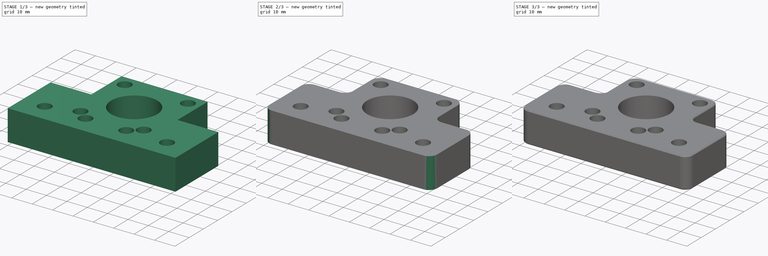
[diagram: build sequence overview — one tinted view per stage of 3, left to right]
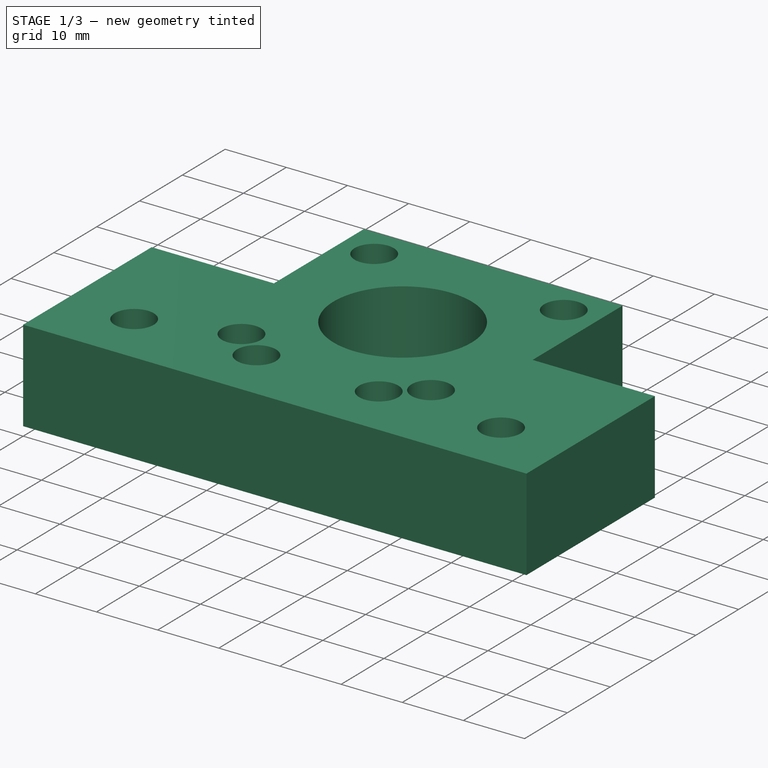
[diagram: stage 1 of 3 — iso view after this stage's code; geometry added in this stage tinted green]
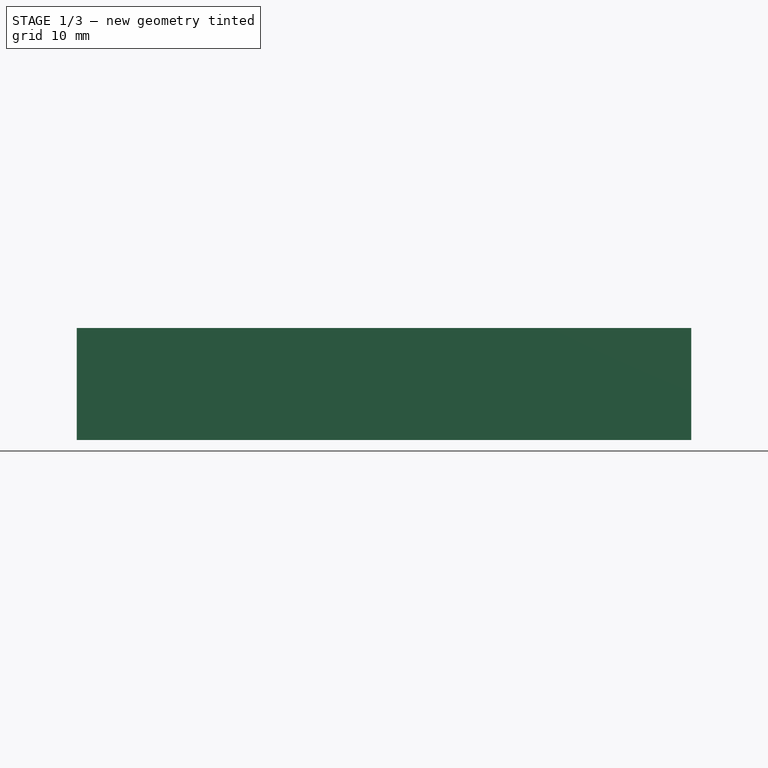
[diagram: stage 1 of 3 — front view after this stage's code; geometry added in this stage tinted green]
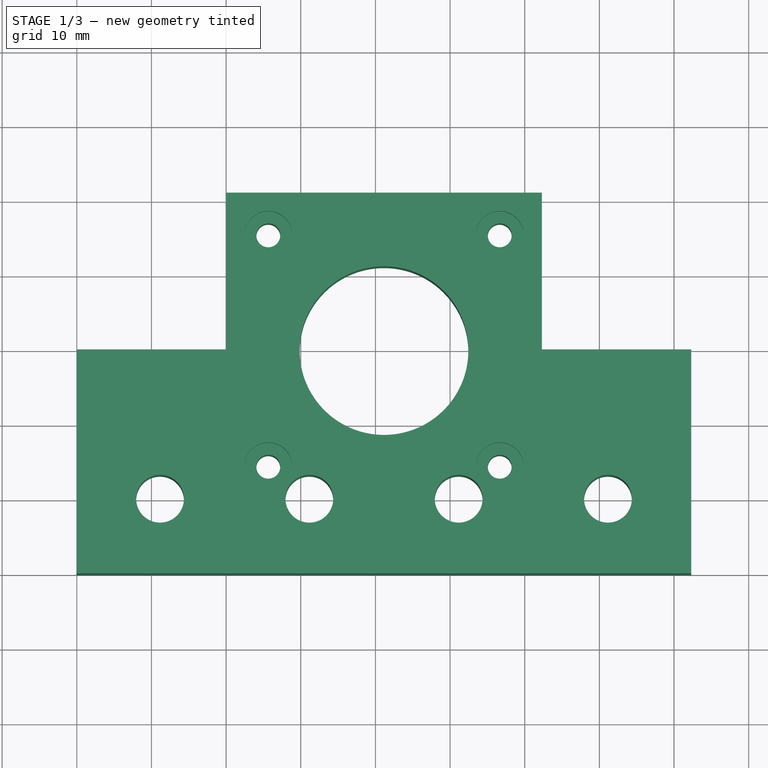
[diagram: stage 1 of 3 — top view after this stage's code; geometry added in this stage tinted green]
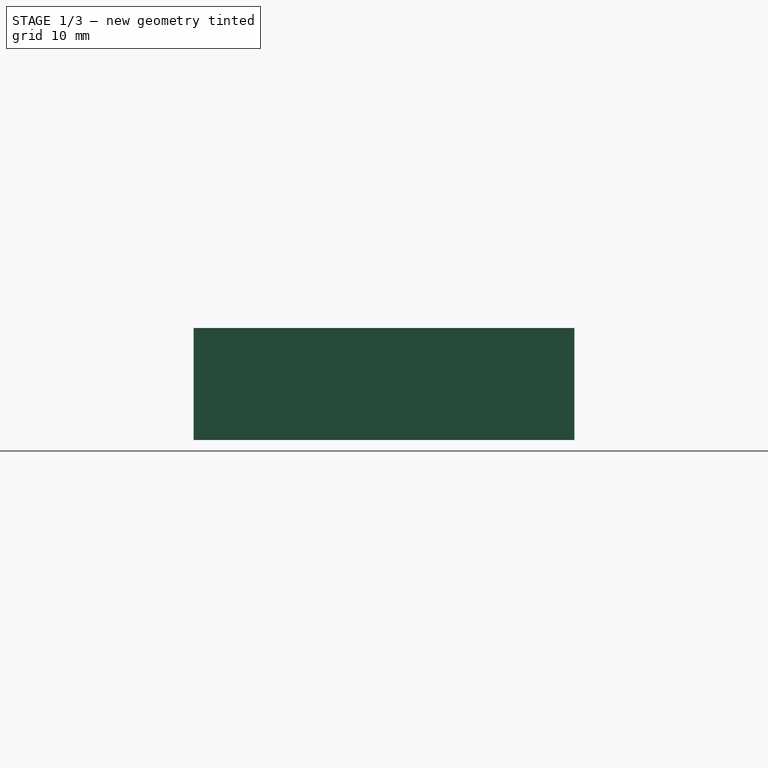
[diagram: stage 1 of 3 — right view after this stage's code; geometry added in this stage tinted green]
FCSTD DOCUMENT  (FreeCAD 0.19R24267 (Git))
Label: mountplate_small1b_mgn12_cham
License: All rights reserved
LicenseURL: http://en.wikipedia.org/wiki/All_rights_reserved
objects: Sketcher::SketchObject×3, PartDesign::Pocket×2, PartDesign::Chamfer×2, PartDesign::Pad×1, PartDesign::Fillet×1, PartDesign::Body×1
note: 16 computed .brp shape members not serialized (recipe doc carries the construction recipe); baked Part::Feature solids carry a one-line shape summary decoded from their .brp

FEATURE [Sketcher::SketchObject] Sketch
  FullyConstrained = true
  MapMode = 5
  Support = -> [XY_Plane]
  sketch-geometry (17):
    g0: LineSegment StartX=20 StartY=30 StartZ=0 EndX=20 EndY=51 EndZ=0
    g1: LineSegment StartX=20 StartY=51 StartZ=0 EndX=62.3 EndY=51 EndZ=0
    g2: LineSegment StartX=62.3 StartY=51 StartZ=0 EndX=62.3 EndY=30 EndZ=0
    g3: LineSegment StartX=62.3 StartY=30 StartZ=0 EndX=82.3 EndY=30 EndZ=0
    g4: LineSegment StartX=82.3 StartY=30 StartZ=0 EndX=82.3 EndY=0 EndZ=0
    g5: LineSegment StartX=82.3 StartY=0 StartZ=0 EndX=0 EndY=0 EndZ=0
    g6: LineSegment StartX=0 StartY=0 StartZ=0 EndX=0 EndY=30 EndZ=0
    g7: LineSegment StartX=0 StartY=30 StartZ=0 EndX=20 EndY=30 EndZ=0
    g8: Circle CenterX=41.15 CenterY=29.85 CenterZ=0 NormalX=0 NormalY=0 NormalZ=1 AngleXU=0 Radius=11.3
    g9: Circle CenterX=25.65 CenterY=45.35 CenterZ=0 NormalX=0 NormalY=0 NormalZ=1 AngleXU=0 Radius=1.6
    g10: Circle CenterX=25.65 CenterY=14.35 CenterZ=0 NormalX=0 NormalY=0 NormalZ=1 AngleXU=0 Radius=1.6
    g11: Circle CenterX=56.65 CenterY=45.35 CenterZ=0 NormalX=0 NormalY=0 NormalZ=1 AngleXU=0 Radius=1.6
    g12: Circle CenterX=56.65 CenterY=14.35 CenterZ=0 NormalX=0 NormalY=0 NormalZ=1 AngleXU=0 Radius=1.6
    g13: Circle CenterX=11.15 CenterY=10 CenterZ=0 NormalX=0 NormalY=0 NormalZ=1 AngleXU=0 Radius=3.2
    g14: Circle CenterX=31.15 CenterY=10 CenterZ=0 NormalX=0 NormalY=0 NormalZ=1 AngleXU=0 Radius=3.2
    g15: Circle CenterX=51.15 CenterY=10 CenterZ=0 NormalX=0 NormalY=0 NormalZ=1 AngleXU=0 Radius=3.2
    g16: Circle CenterX=71.15 CenterY=10 CenterZ=0 NormalX=0 NormalY=0 NormalZ=1 AngleXU=0 Radius=3.2
  constraints (50):
    c: Coincident(g0,g1)
    c: Coincident(g1,g2)
    c: Coincident(g2,g3)
    c: Coincident(g3,g4)
    c: Coincident(g4,g5)
    c: Coincident(g5,g6)
    c: Coincident(g6,g7)
    c: Coincident(g7,g0)
    c: Horizontal(g1)
    c: Horizontal(g5)
    c: Horizontal(g7)
    c: Horizontal(g3)
    c: Vertical(g0)
    c: Vertical(g2)
    c: Vertical(g6)
    c: Vertical(g4)
    c: Coincident(g5,g-1)
    c: DistanceX(g5,g5) = 82.3
    c: DistanceX(g7,g7) = 20
    c: DistanceX(g3,g3) = 20
    c: DistanceY(g4,g4) = 30
    c: DistanceY(g6,g6) = 30
    c: DistanceY(g0,g0) = 21
    c: DistanceX(g0,g8) = 21.15
    c: DistanceY(g8,g1) = 21.15
    c: Radius(g8) = 11.3
    c: DistanceX(g0,g9) = 5.65
    c: DistanceY(g9,g0) = 5.65
    c: DistanceY(g9,g11) = 0
    c: DistanceX(g9,g11) = 31
    c: DistanceX(g10,g9) = 0
    c: DistanceY(g10,g9) = 31
    c: DistanceY(g10,g12) = 0
    c: DistanceX(g12,g11) = 0
    c: Radius(g10) = 1.6
    c: Equal(g10,g9)
    c: Equal(g10,g11)
    c: Equal(g10,g12)
    c: DistanceY(g5,g13) = 10
    c: DistanceX(g5,g13) = 11.15
    c: DistanceY(g13,g14) = 0
    c: DistanceY(g14,g15) = 0
    c: DistanceY(g15,g16) = 0
    c: DistanceX(g13,g14) = 20
    c: DistanceX(g14,g15) = 20
    c: DistanceX(g15,g16) = 20
    c: Radius(g13) = 3.2
    c: Equal(g13,g14)
    c: Equal(g13,g15)
    c: Equal(g13,g16)
FEATURE [PartDesign::Pad] Pad
  AllowMultiFace = false
  Direction = (1,1,1)
  Length = 15
  Length2 = 100
  Profile = -> Sketch
  Type = 0
FEATURE [Sketcher::SketchObject] Sketch001
  FullyConstrained = true
  MapMode = 5
  Placement = pos=(0,0,15) rot=(0,0,1;0rad)
  Support = -> [Pad]
  sketch-geometry (4):
    g0: Circle CenterX=25.65 CenterY=45.35 CenterZ=0 NormalX=0 NormalY=0 NormalZ=1 AngleXU=0 Radius=3.2
    g1: Circle CenterX=56.65 CenterY=45.35 CenterZ=0 NormalX=0 NormalY=0 NormalZ=1 AngleXU=0 Radius=3.2
    g2: Circle CenterX=56.65 CenterY=14.35 CenterZ=0 NormalX=0 NormalY=0 NormalZ=1 AngleXU=0 Radius=3.2
    g3: Circle CenterX=25.65 CenterY=14.35 CenterZ=0 NormalX=0 NormalY=0 NormalZ=1 AngleXU=0 Radius=3.2
  constraints (12):
    c: DistanceX(g-1,g3) = 25.65
    c: DistanceY(g-1,g0) = 45.35
    c: DistanceX(g0,g3) = 0
    c: DistanceY(g3,g0) = 31
    c: DistanceY(g0,g1) = 0
    c: DistanceX(g0,g1) = 31
    c: DistanceX(g2,g1) = 0
    c: DistanceY(g3,g2) = 0
    c: Radius(g0) = 3.2
    c: Equal(g0,g1)
    c: Equal(g0,g2)
    c: Equal(g0,g3)
FEATURE [PartDesign::Pocket] Pocket
  AllowMultiFace = false
  BaseFeature = -> Pad
  Length = 3.4
  Length2 = 100
  Profile = -> Sketch001
  Type = 0
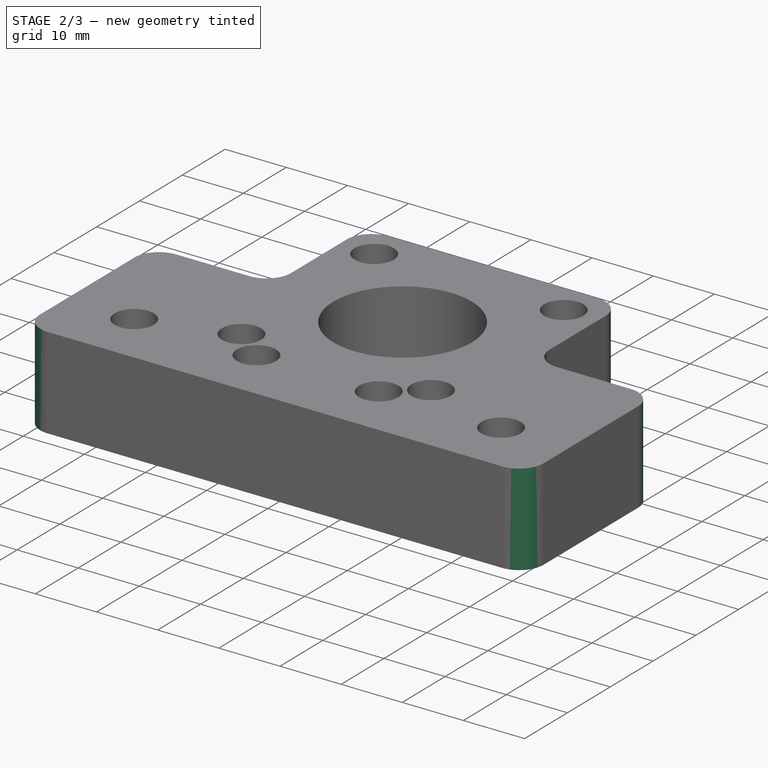
[diagram: stage 2 of 3 — iso view after this stage's code; geometry added in this stage tinted green]
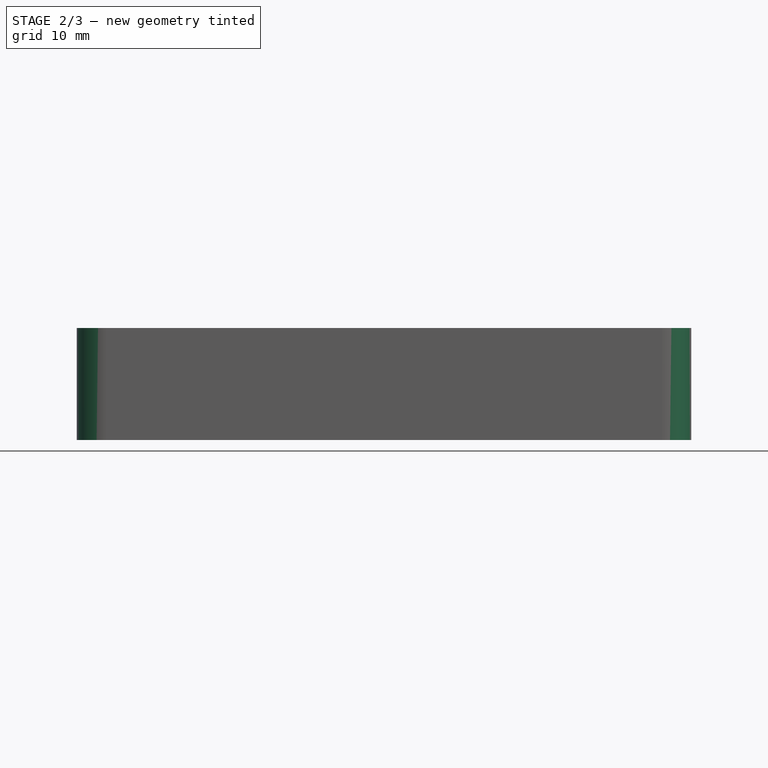
[diagram: stage 2 of 3 — front view after this stage's code; geometry added in this stage tinted green]
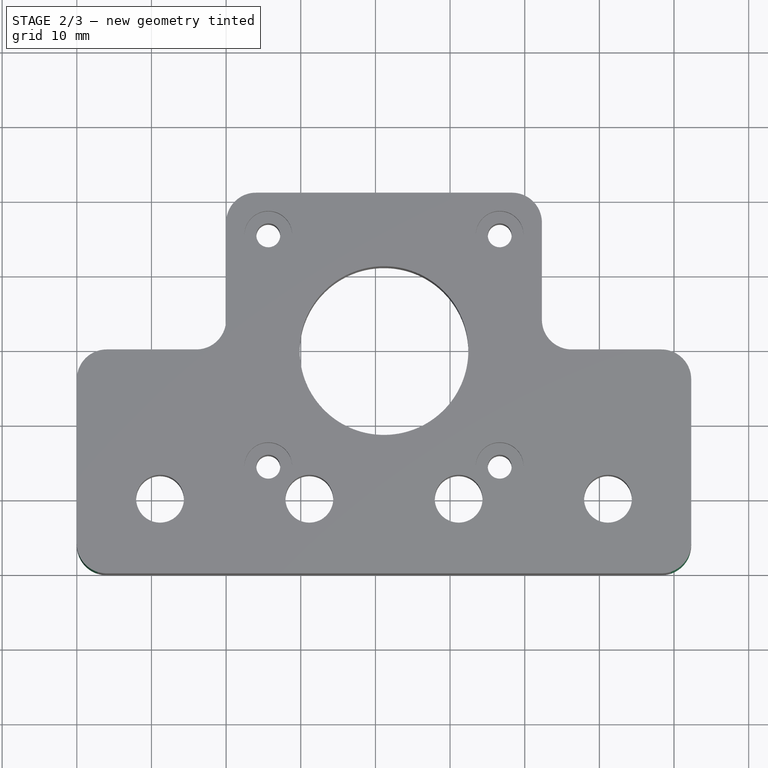
[diagram: stage 2 of 3 — top view after this stage's code; geometry added in this stage tinted green]
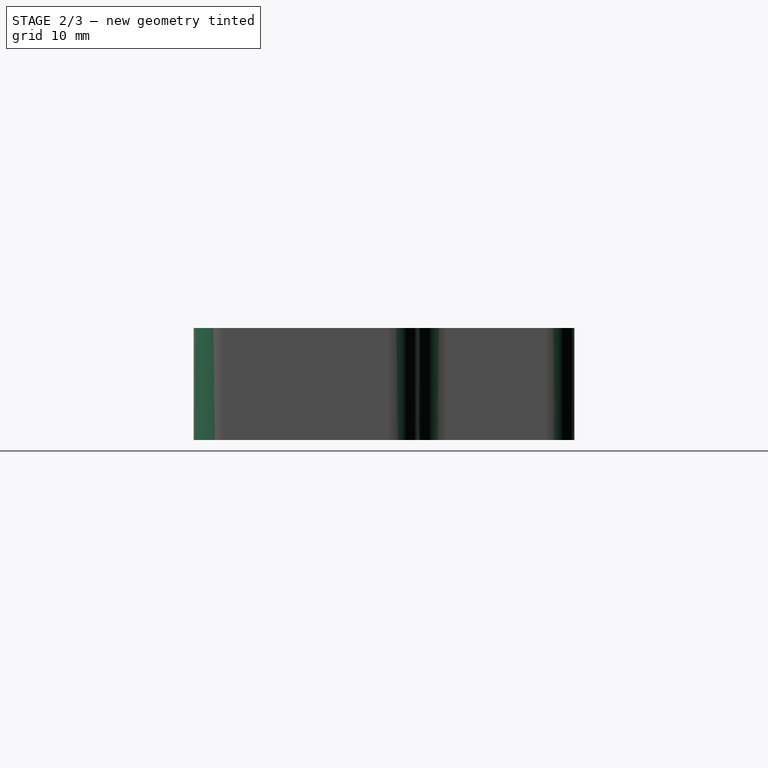
[diagram: stage 2 of 3 — right view after this stage's code; geometry added in this stage tinted green]
FEATURE [Sketcher::SketchObject] Sketch002
  FullyConstrained = true
  MapMode = 5
  Placement = pos=(0,0,0) rot=(1,0,0;3.14159rad)
  Support = -> [Pocket]
  sketch-geometry (4):
    g0: Circle CenterX=11.15 CenterY=-10 CenterZ=0 NormalX=0 NormalY=0 NormalZ=1 AngleXU=0 Radius=6.1
    g1: Circle CenterX=31.15 CenterY=-10 CenterZ=0 NormalX=0 NormalY=0 NormalZ=1 AngleXU=0 Radius=6.1
    g2: Circle CenterX=51.15 CenterY=-10 CenterZ=0 NormalX=0 NormalY=0 NormalZ=1 AngleXU=0 Radius=6.1
    g3: Circle CenterX=71.15 CenterY=-10 CenterZ=0 NormalX=0 NormalY=0 NormalZ=1 AngleXU=0 Radius=6.1
  constraints (12):
    c: DistanceX(g-1,g0) = 11.15
    c: DistanceY(g0,g-1) = 10
    c: DistanceX(g0,g1) = 20
    c: DistanceX(g1,g2) = 20
    c: DistanceX(g2,g3) = 20
    c: DistanceY(g0,g1) = 0
    c: DistanceY(g1,g2) = 0
    c: DistanceY(g2,g3) = 0
    c: Radius(g0) = 6.1
    c: Equal(g0,g1)
    c: Equal(g0,g2)
    c: Equal(g0,g3)
FEATURE [PartDesign::Pocket] Pocket001
  AllowMultiFace = false
  BaseFeature = -> Pocket
  Length = 4
  Length2 = 100
  Profile = -> Sketch002
  Type = 0
FEATURE [PartDesign::Fillet] Fillet
  Base = -> Pocket001 [Edge8,Edge43,Edge45,Edge44,Edge42,Edge5,Edge1,Edge2]
  BaseFeature = -> Pocket001
  Radius = 4
  SupportTransform = false
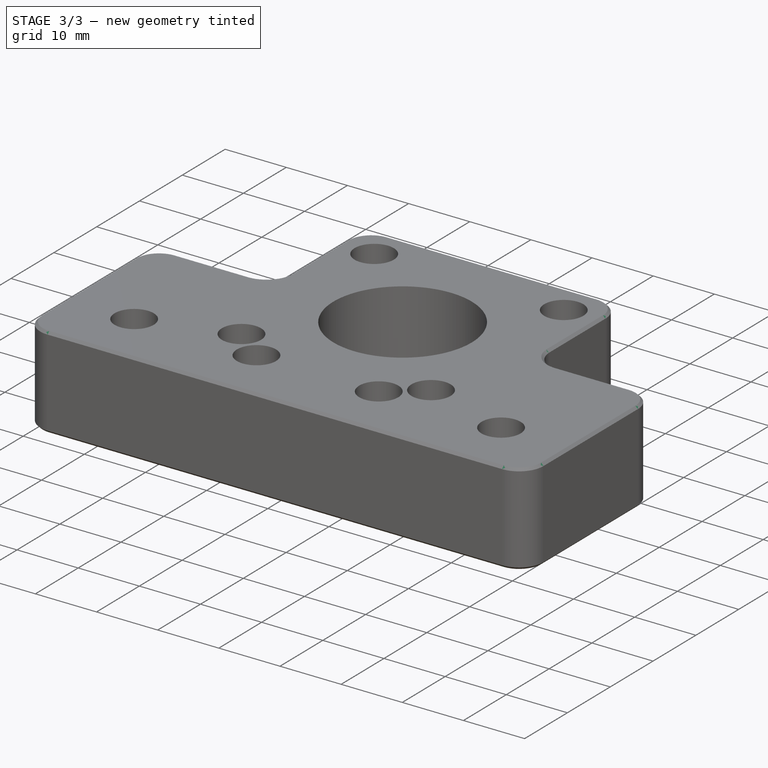
[diagram: stage 3 of 3 — iso view after this stage's code; geometry added in this stage tinted green]
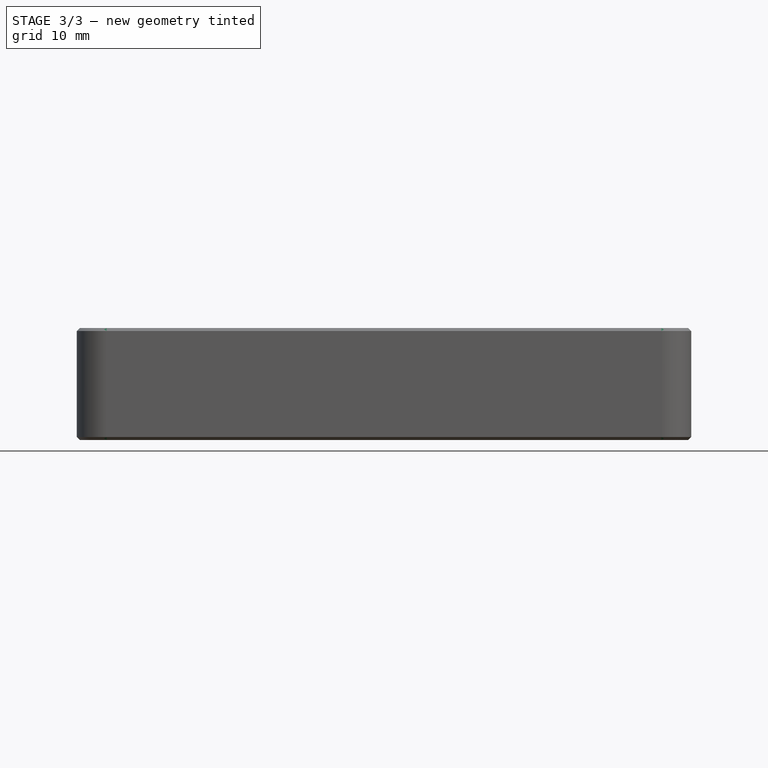
[diagram: stage 3 of 3 — front view after this stage's code; geometry added in this stage tinted green]
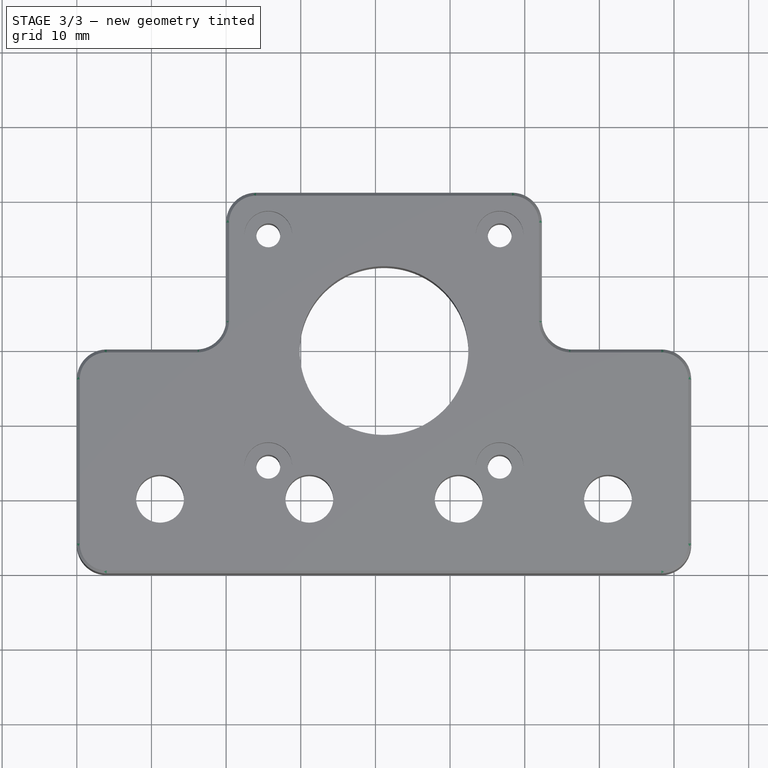
[diagram: stage 3 of 3 — top view after this stage's code; geometry added in this stage tinted green]
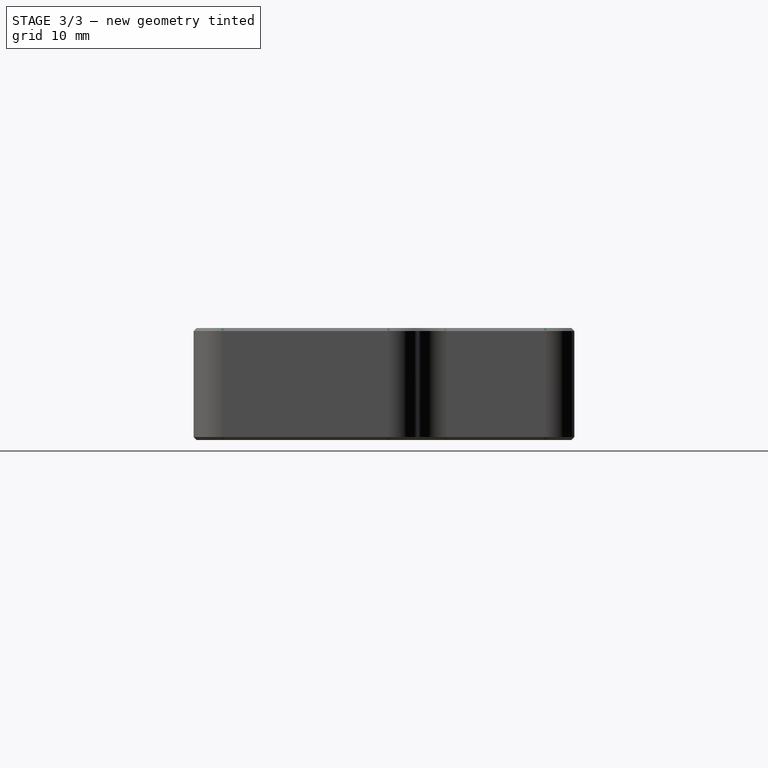
[diagram: stage 3 of 3 — right view after this stage's code; geometry added in this stage tinted green]
FEATURE [PartDesign::Chamfer] Chamfer
  Angle = 45
  Base = -> Fillet [Face2]
  BaseFeature = -> Fillet
  ChamferType = 0
  FlipDirection = false
  Size = 0.4
  Size2 = 1
  SupportTransform = false
FEATURE [PartDesign::Chamfer] Chamfer001
  Angle = 45
  Base = -> Chamfer [Edge3,Edge11,Edge13,Edge15,Edge17,Edge19,Edge21,Edge23,Edge24,Edge22,Edge20,Edge18,Edge16,Edge14,Edge12,Edge6]
  BaseFeature = -> Chamfer
  ChamferType = 0
  FlipDirection = false
  Size = 0.4
  Size2 = 1
  SupportTransform = false
FEATURE [PartDesign::Body] Body
  Group = -> [Sketch,Pad,Sketch001,Pocket,Sketch002,Pocket001,Fillet,Chamfer,Chamfer001]
  Origin = -> Origin
  Tip = -> Chamfer001
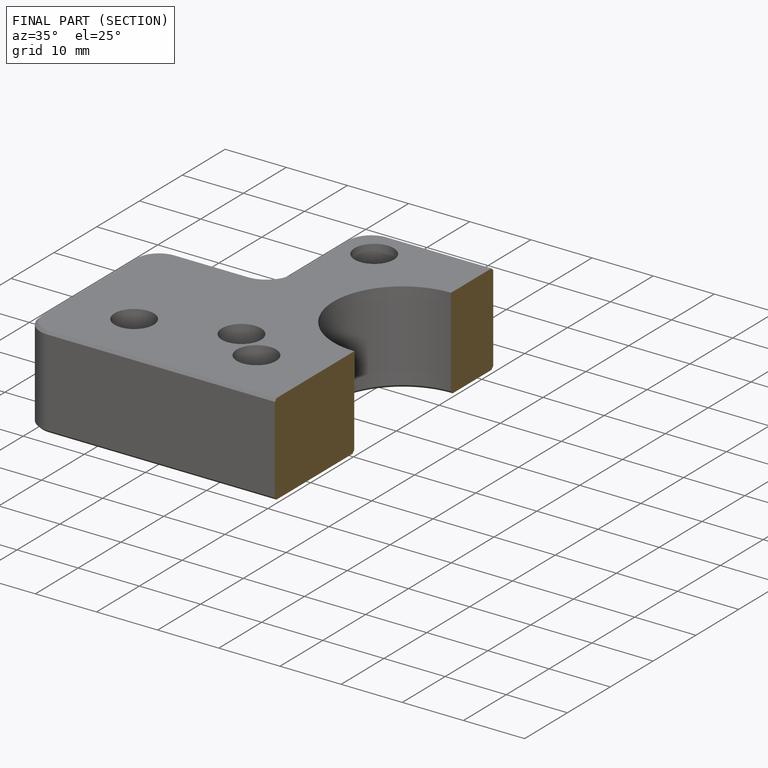
[diagram: finished part — half-section view (interior)]
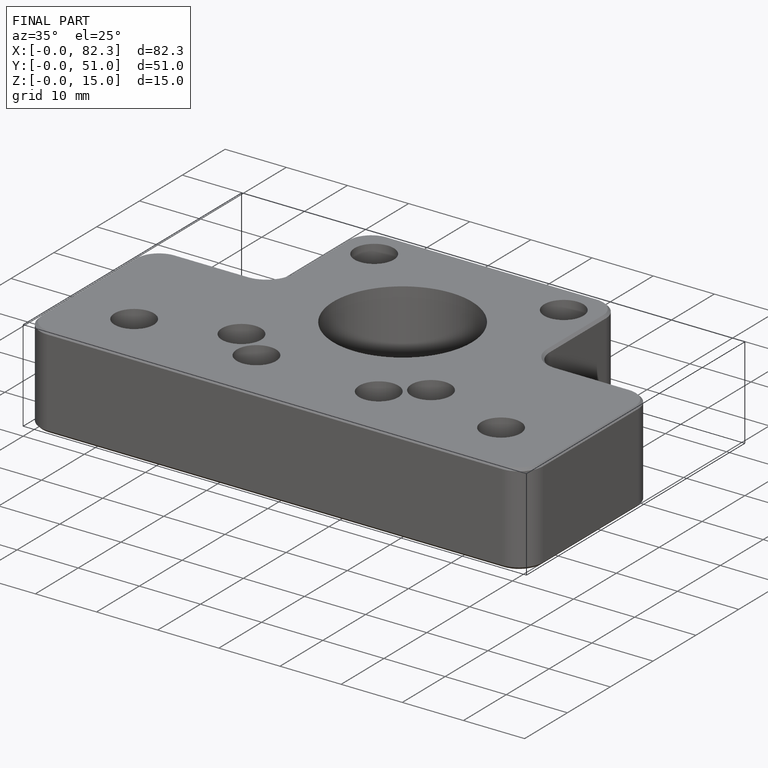
[diagram: finished part — iso view with bounding-box wireframe]
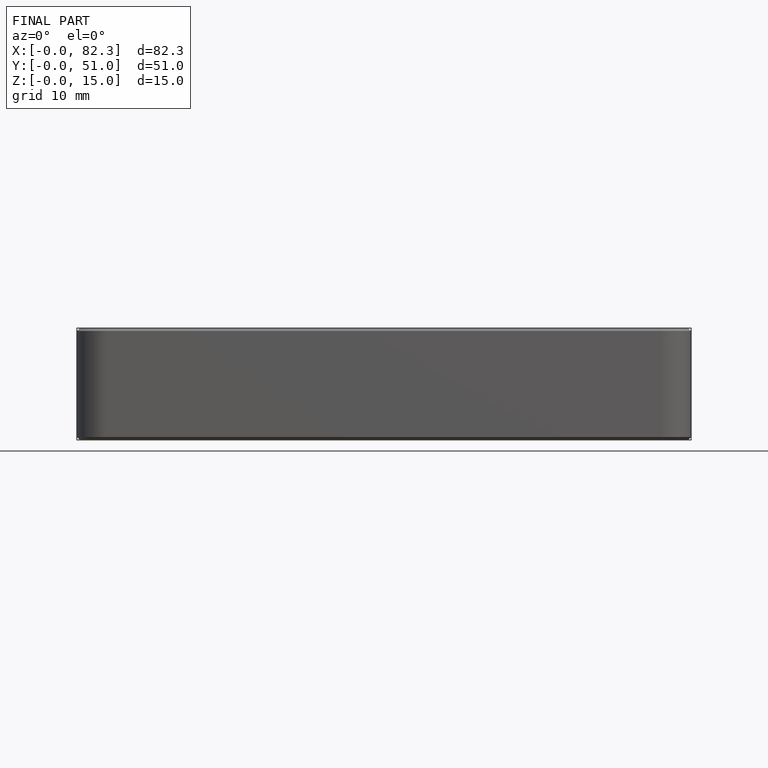
[diagram: finished part — front view with bounding-box wireframe]
